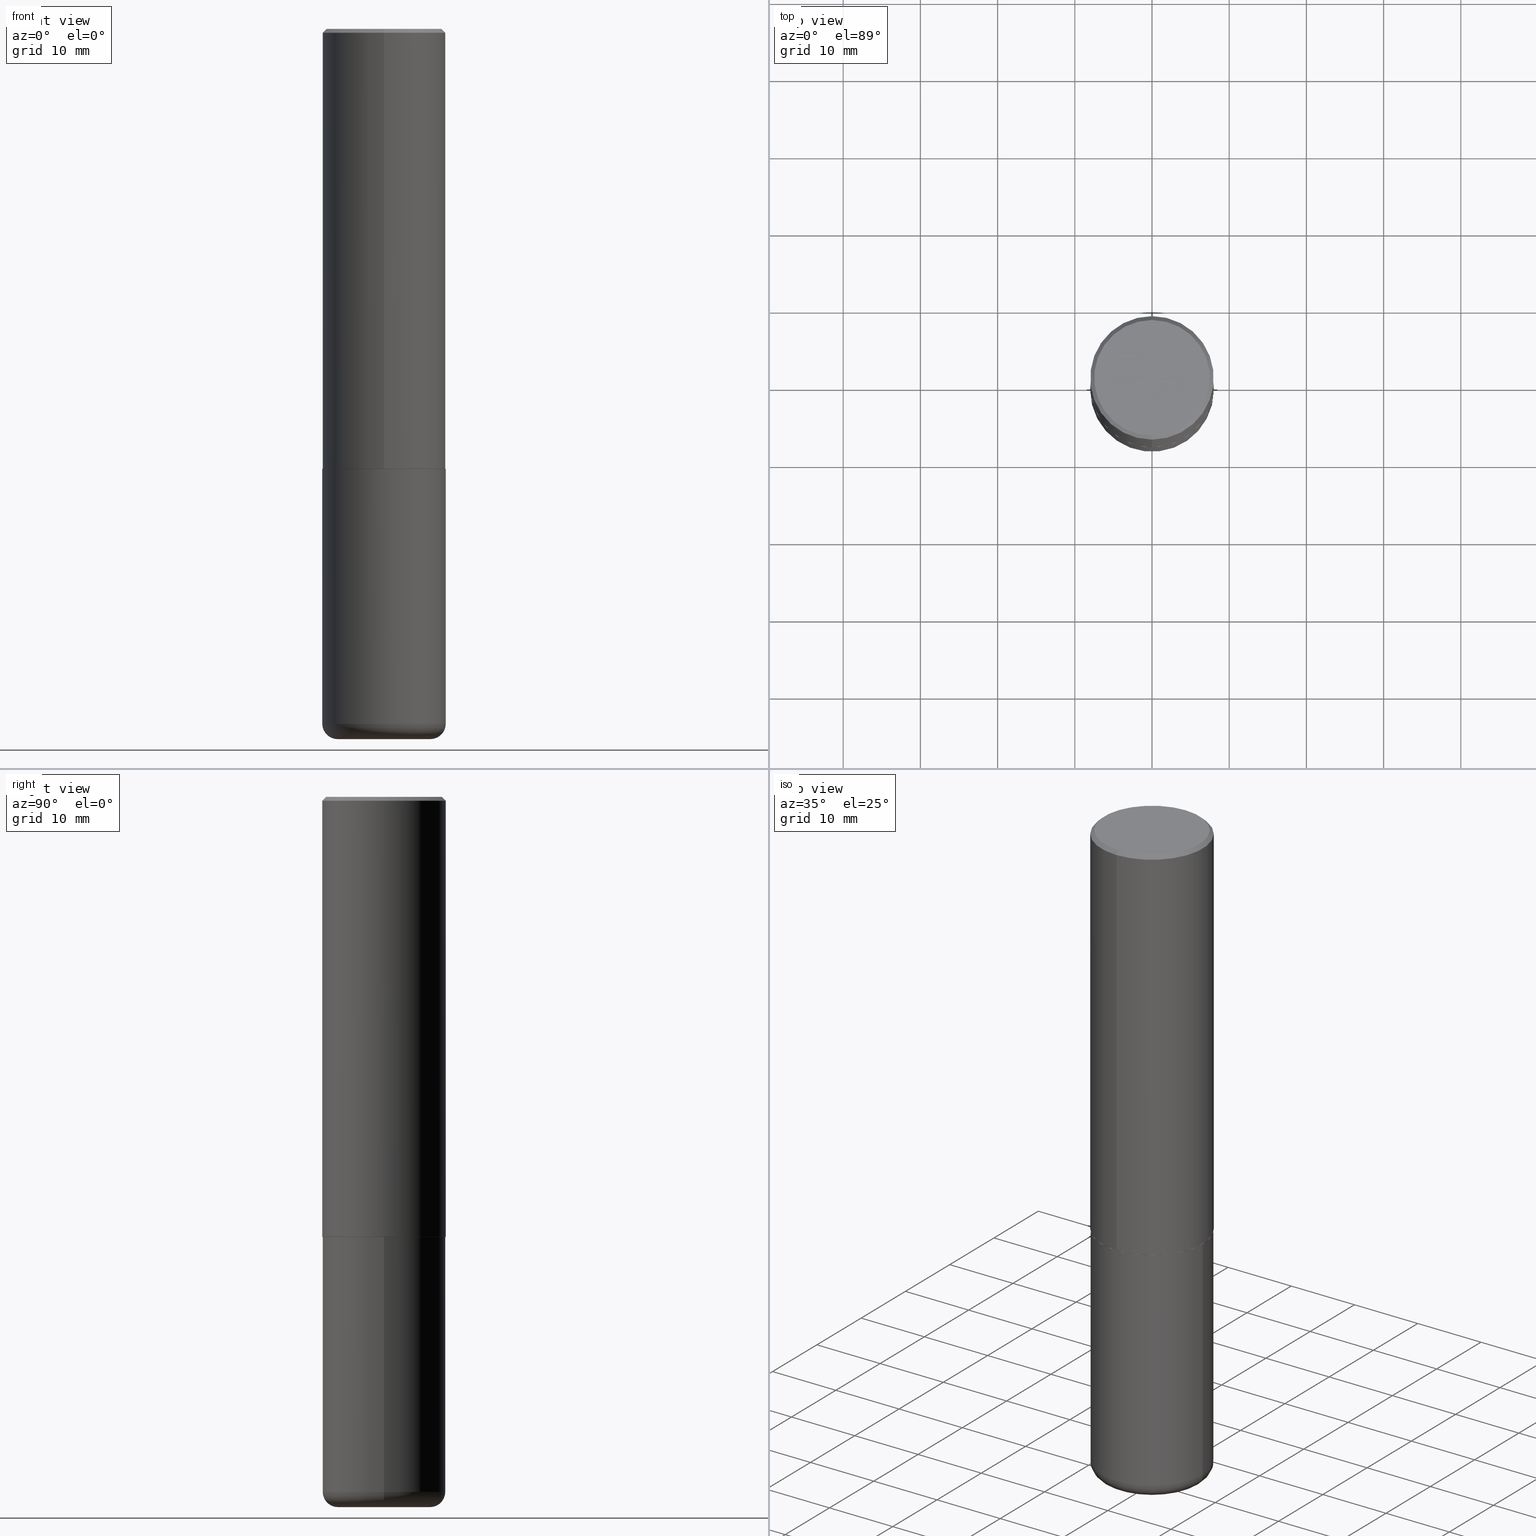
[diagram: canonical four-view strip — front | top / right | iso, engineering-drawing reading convention]
A machine part, canonical four-view strip (front | top / right | iso — engineering-drawing reading convention). The complete STEP part file that produces these views, byte-faithful:
ISO-10303-21;
HEADER;
FILE_DESCRIPTION (( 'STEP AP203' ),
    '1' );
FILE_NAME ('47132.STEP',
    '2024-03-05T22:03:56',
    ( '' ),
    ( '' ),
    'SwSTEP 2.0',
    'SolidWorks 2023',
    '' );
FILE_SCHEMA (( 'CONFIG_CONTROL_DESIGN' ));
ENDSEC;

DATA;
#1 = AXIS2_PLACEMENT_3D ( 'NONE', #29, #97, #381 ) ;
#2 = LINE ( 'NONE', #28, #35 ) ;
#3 = DATE_AND_TIME ( #254, #274 ) ;
#4 = DIRECTION ( 'NONE',  ( -2.445468806185136597E-29, 3.491481338843145583E-15, 1.000000000000000000 ) ) ;
#5 = APPROVAL_STATUS ( 'not_yet_approved' ) ;
#6 = FACE_OUTER_BOUND ( 'NONE', #56, .T. ) ;
#7 = CIRCLE ( 'NONE', #400, 0.3149500000000000077 ) ;
#8 = ORGANIZATION ( 'UNSPECIFIED', 'UNSPECIFIED', '' ) ;
#9 = DIRECTION ( 'NONE',  ( -2.445731576433639262E-29, 3.491105036891335583E-15, 1.000000000000000000 ) ) ;
#10 = CARTESIAN_POINT ( 'NONE',  ( 0.2362500000000000155, -1.429587034189325203E-14, -3.621999999999999886 ) ) ;
#11 = EDGE_LOOP ( 'NONE', ( #270, #60, #55, #53 ) ) ;
#12 = APPROVAL_ROLE ( '' ) ;
#13 = EDGE_LOOP ( 'NONE', ( #180, #20, #133, #298 ) ) ;
#14 = DIRECTION ( 'NONE',  ( -2.445731576433639542E-29, 3.491105036891335583E-15, 1.000000000000000000 ) ) ;
#15 = ORIENTED_EDGE ( 'NONE', *, *, #195, .F. ) ;
#16 = DIRECTION ( 'NONE',  ( 1.000000000000000000, -6.982962677686266711E-15, 4.876176775795936353E-29 ) ) ;
#17 = ORIENTED_EDGE ( 'NONE', *, *, #278, .T. ) ;
#18 = ORIENTED_EDGE ( 'NONE', *, *, #123, .T. ) ;
#19 = CC_DESIGN_PERSON_AND_ORGANIZATION_ASSIGNMENT ( #360, #364, ( #409 ) ) ;
#20 = ORIENTED_EDGE ( 'NONE', *, *, #259, .T. ) ;
#21 = CARTESIAN_POINT ( 'NONE',  ( -0.3149500000000000077, -7.865270629867031177E-15, -2.243999999999999773 ) ) ;
#22 = DIRECTION ( 'NONE',  ( -2.445731576433639542E-29, 3.491105036891335583E-15, 1.000000000000000000 ) ) ;
#23 = AXIS2_PLACEMENT_3D ( 'NONE', #229, #44, #71 ) ;
#24 = CARTESIAN_POINT ( 'NONE',  ( 5.488221657517087855E-29, -7.834039702784156618E-15, -2.244000000000000217 ) ) ;
#25 = APPROVAL_PERSON_ORGANIZATION ( #293, #92, #12 ) ;
#26 = DIRECTION ( 'NONE',  ( -6.982962677686266711E-15, -1.000000000000000000, 3.480615376543096919E-15 ) ) ;
#27 = EDGE_CURVE ( 'NONE', #266, #304, #399, .T. ) ;
#28 = CARTESIAN_POINT ( 'NONE',  ( -2.192301132659548636E-15, -0.3139500000000078339, -2.243999999999998884 ) ) ;
#29 = CARTESIAN_POINT ( 'NONE',  ( 8.857488016002564476E-29, -1.264614540928987199E-14, -3.621999999999999886 ) ) ;
#30 = VECTOR ( 'NONE', #199, 39.37007874015748143 ) ;
#31 = CIRCLE ( 'NONE', #417, 0.3149500000000000077 ) ;
#32 = EDGE_CURVE ( 'NONE', #210, #373, #358, .T. ) ;
#33 = ORIENTED_EDGE ( 'NONE', *, *, #27, .T. ) ;
#34 = CARTESIAN_POINT ( 'NONE',  ( 5.485775925940652970E-29, -7.830548597747266147E-15, -2.242999999999999883 ) ) ;
#35 = VECTOR ( 'NONE', #388, 39.37007874015748854 ) ;
#36 = DATE_AND_TIME ( #191, #285 ) ;
#37 = DIRECTION ( 'NONE',  ( 7.105427357601001859E-15, 1.000000000000000000, -3.491481338843145583E-15 ) ) ;
#38 = EDGE_CURVE ( 'NONE', #304, #206, #218, .T. ) ;
#39 = DIRECTION ( 'NONE',  ( -6.982962677686267499E-15, -1.000000000000000000, 3.491105036891335189E-15 ) ) ;
#40 = SECURITY_CLASSIFICATION_LEVEL ( 'unclassified' ) ;
#41 = DIRECTION ( 'NONE',  ( 1.000000000000000000, -6.982962677686266711E-15, 0.000000000000000000 ) ) ;
#42 = AXIS2_PLACEMENT_3D ( 'NONE', #244, #188, #316 ) ;
#43 = CARTESIAN_POINT ( 'NONE',  ( 2.234301632597690306E-15, 0.3139499999999921798, -2.244000000000001105 ) ) ;
#44 = DIRECTION ( 'NONE',  ( -2.445468806185136597E-29, 3.491481338843145583E-15, 1.000000000000000000 ) ) ;
#45 = ORIENTED_EDGE ( 'NONE', *, *, #27, .F. ) ;
#46 = ORIENTED_EDGE ( 'NONE', *, *, #278, .F. ) ;
#47 = DATE_AND_TIME ( #335, #176 ) ;
#48 = PERSON ( 'UNSPECIFIED', 'UNSPECIFIED', 'UNSPECIFIED', ('UNSPECIFIED'), ('UNSPECIFIED'), ('UNSPECIFIED') ) ;
#49 = ORIENTED_EDGE ( 'NONE', *, *, #286, .T. ) ;
#50 = CONICAL_SURFACE ( 'NONE', #353, 0.3139500000000000068, 0.7853981633974141952 ) ;
#51 = PRODUCT_DEFINITION_SHAPE ( 'NONE', 'NONE',  #398 ) ;
#52 =( GEOMETRIC_REPRESENTATION_CONTEXT ( 3 ) GLOBAL_UNCERTAINTY_ASSIGNED_CONTEXT ( ( #223 ) ) GLOBAL_UNIT_ASSIGNED_CONTEXT ( ( #213, #145, #342 ) ) REPRESENTATION_CONTEXT ( 'NONE', 'WORKASPACE' ) );
#53 = ORIENTED_EDGE ( 'NONE', *, *, #351, .F. ) ;
#54 = EDGE_CURVE ( 'NONE', #262, #206, #2, .T. ) ;
#55 = ORIENTED_EDGE ( 'NONE', *, *, #291, .T. ) ;
#56 = EDGE_LOOP ( 'NONE', ( #235, #17, #240, #238 ) ) ;
#57 = DIRECTION ( 'NONE',  ( -6.982962677686265922E-15, -1.000000000000000000, 3.496670018878888311E-15 ) ) ;
#58 = CC_DESIGN_PERSON_AND_ORGANIZATION_ASSIGNMENT ( #277, #280, ( #313 ) ) ;
#59 = VECTOR ( 'NONE', #164, 39.37007874015748143 ) ;
#60 = ORIENTED_EDGE ( 'NONE', *, *, #211, .T. ) ;
#61 = CARTESIAN_POINT ( 'NONE',  ( 0.000000000000000000, 0.000000000000000000, 0.000000000000000000 ) ) ;
#62 = DIMENSIONAL_EXPONENTS ( 1.000000000000000000, 0.000000000000000000, 0.000000000000000000, 0.000000000000000000, 0.000000000000000000, 0.000000000000000000, 0.000000000000000000 ) ;
#63 = FACE_OUTER_BOUND ( 'NONE', #136, .T. ) ;
#64 = AXIS2_PLACEMENT_3D ( 'NONE', #114, #283, #241 ) ;
#65 = DIRECTION ( 'NONE',  ( 6.982962677686265922E-15, 1.000000000000000000, -3.496670018878888311E-15 ) ) ;
#66 = ADVANCED_FACE ( 'NONE', ( #415 ), #380, .T. ) ;
#67 = DIRECTION ( 'NONE',  ( -6.982962677686264344E-15, -1.000000000000000000, 3.491105036891335189E-15 ) ) ;
#68 = CALENDAR_DATE ( 2024, 5, 3 ) ;
#69 = DIRECTION ( 'NONE',  ( -2.445468806185136597E-29, 3.491481338843145583E-15, 1.000000000000000000 ) ) ;
#70 = PERSON_AND_ORGANIZATION ( #48, #8 ) ;
#71 = DIRECTION ( 'NONE',  ( 1.000000000000000000, -6.982962677686266711E-15, 0.000000000000000000 ) ) ;
#72 = DIRECTION ( 'NONE',  ( 1.000000000000000000, -6.982962677686269866E-15, 0.000000000000000000 ) ) ;
#73 = AXIS2_PLACEMENT_3D ( 'NONE', #61, #225, #67 ) ;
#74 = ORIENTED_EDGE ( 'NONE', *, *, #295, .T. ) ;
#75 = CC_DESIGN_APPROVAL ( #320, ( #398 ) ) ;
#76 = PERSON_AND_ORGANIZATION ( #48, #8 ) ;
#77 = CARTESIAN_POINT ( 'NONE',  ( 8.857488016002564476E-29, -1.264614540928987199E-14, -3.621999999999999886 ) ) ;
#78 = DIRECTION ( 'NONE',  ( 5.024295867787889629E-15, 0.7071067811865257013, 0.7071067811865691111 ) ) ;
#79 = ORIENTED_EDGE ( 'NONE', *, *, #329, .T. ) ;
#80 = COORDINATED_UNIVERSAL_TIME_OFFSET ( 5, 0, .BEHIND. ) ;
#81 = ORIENTED_EDGE ( 'NONE', *, *, #375, .T. ) ;
#82 = CARTESIAN_POINT ( 'NONE',  ( 0.2362500000000000155, -1.402109076052629711E-14, -3.543299999999999894 ) ) ;
#83 = DIRECTION ( 'NONE',  ( 1.000000000000000000, -6.982962677686265133E-15, 4.883557194083112340E-29 ) ) ;
#84 = ORIENTED_EDGE ( 'NONE', *, *, #170, .F. ) ;
#85 = EDGE_CURVE ( 'NONE', #324, #340, #155, .T. ) ;
#86 = DIRECTION ( 'NONE',  ( -6.982962677686265922E-15, -1.000000000000000000, 3.496670018878888311E-15 ) ) ;
#87 = ORIENTED_EDGE ( 'NONE', *, *, #123, .F. ) ;
#88 = DIRECTION ( 'NONE',  ( -6.982962677686265922E-15, -1.000000000000000000, 3.469564049740290009E-15 ) ) ;
#89 = CIRCLE ( 'NONE', #390, 0.3149500000000002853 ) ;
#90 = FACE_OUTER_BOUND ( 'NONE', #334, .T. ) ;
#91 = PRODUCT_RELATED_PRODUCT_CATEGORY ( 'detail', '', ( #313 ) ) ;
#92 = APPROVAL ( #5, 'UNSPECIFIED' ) ;
#93 = CIRCLE ( 'NONE', #347, 0.2362500000000000155 ) ;
#94 = CARTESIAN_POINT ( 'NONE',  ( -2.160713844398143757E-15, -0.3149500000000001743, -0.01999999999999896652 ) ) ;
#95 = ADVANCED_FACE ( 'NONE', ( #90 ), #214, .T. ) ;
#96 = COORDINATED_UNIVERSAL_TIME_OFFSET ( 5, 0, .BEHIND. ) ;
#97 = DIRECTION ( 'NONE',  ( -2.445468806185136597E-29, 3.491481338843145583E-15, 1.000000000000000000 ) ) ;
#98 = CARTESIAN_POINT ( 'NONE',  ( -0.3149500000000000077, 2.237854346276435590E-15, -1.549218606675782676E-29 ) ) ;
#99 = SHAPE_DEFINITION_REPRESENTATION ( #51, #370 ) ;
#100 = CARTESIAN_POINT ( 'NONE',  ( -0.2362500000000000155, -1.055049983885156031E-14, -3.621999999999999886 ) ) ;
#101 = DIRECTION ( 'NONE',  ( -1.000000000000000000, 7.105427357600997914E-15, 0.000000000000000000 ) ) ;
#102 = ADVANCED_FACE ( 'NONE', ( #252 ), #50, .T. ) ;
#103 = APPROVAL_DATE_TIME ( #396, #92 ) ;
#104 = CARTESIAN_POINT ( 'NONE',  ( 2.059624841783564063E-15, 0.2949499999999999345, -9.678634946549864323E-16 ) ) ;
#105 = CIRCLE ( 'NONE', #406, 0.07869999999999993667 ) ;
#106 = CARTESIAN_POINT ( 'NONE',  ( 2.230748918918889014E-15, 0.3139499999999921798, -2.244000000000001105 ) ) ;
#107 = AXIS2_PLACEMENT_3D ( 'NONE', #378, #315, #405 ) ;
#108 = ORIENTED_EDGE ( 'NONE', *, *, #32, .F. ) ;
#109 = DIRECTION ( 'NONE',  ( 6.982962677686265922E-15, 1.000000000000000000, -3.491105036891335583E-15 ) ) ;
#110 = DIRECTION ( 'NONE',  ( -2.445468806185136597E-29, 3.491481338843145583E-15, 1.000000000000000000 ) ) ;
#111 = ORIENTED_EDGE ( 'NONE', *, *, #383, .T. ) ;
#112 = CONICAL_SURFACE ( 'NONE', #248, 0.3139500000000000068, 0.7853981633974141952 ) ;
#113 = DIRECTION ( 'NONE',  ( -6.982962677686266711E-15, -1.000000000000000000, 3.480615376543096919E-15 ) ) ;
#114 = CARTESIAN_POINT ( 'NONE',  ( 8.857488016002564476E-29, -1.264614540928987199E-14, -3.621999999999999886 ) ) ;
#115 = LENGTH_MEASURE_WITH_UNIT ( LENGTH_MEASURE( 0.02539999999999999897 ), #374 );
#116 = DIRECTION ( 'NONE',  ( -6.982962677686265922E-15, -1.000000000000000000, 3.469564049740290009E-15 ) ) ;
#117 = PERSON_AND_ORGANIZATION ( #48, #8 ) ;
#118 = DIRECTION ( 'NONE',  ( -2.445731576433639542E-29, 3.491105036891335583E-15, 1.000000000000000000 ) ) ;
#119 = TOROIDAL_SURFACE ( 'NONE', #385, 0.2362500000000000155, 0.07869999999999995055 ) ;
#120 = AXIS2_PLACEMENT_3D ( 'NONE', #104, #233, #109 ) ;
#121 = CARTESIAN_POINT ( 'NONE',  ( 4.891463152867296425E-31, -6.982210073782693945E-17, -0.02000000000000006981 ) ) ;
#122 = APPROVAL_PERSON_ORGANIZATION ( #161, #247, #193 ) ;
#123 = EDGE_CURVE ( 'NONE', #206, #210, #154, .T. ) ;
#124 = DIRECTION ( 'NONE',  ( -2.445731576433639542E-29, 3.491105036891335583E-15, 1.000000000000000000 ) ) ;
#125 = PERSON_AND_ORGANIZATION_ROLE ( 'design_supplier' ) ;
#126 = FACE_OUTER_BOUND ( 'NONE', #157, .T. ) ;
#127 = DATE_TIME_ROLE ( 'classification_date' ) ;
#128 = LINE ( 'NONE', #236, #363 ) ;
#129 = AXIS2_PLACEMENT_3D ( 'NONE', #134, #261, #39 ) ;
#130 = APPROVAL_PERSON_ORGANIZATION ( #117, #320, #267 ) ;
#131 = ADVANCED_FACE ( 'NONE', ( #282 ), #187, .T. ) ;
#132 = CARTESIAN_POINT ( 'NONE',  ( -0.2362500000000000155, -1.069270861468967988E-14, -3.543299999999999894 ) ) ;
#133 = ORIENTED_EDGE ( 'NONE', *, *, #231, .F. ) ;
#134 = CARTESIAN_POINT ( 'NONE',  ( -3.024779852765215528E-45, 4.317654595143425060E-31, 1.236758719522255372E-16 ) ) ;
#135 = ORIENTED_EDGE ( 'NONE', *, *, #231, .T. ) ;
#136 = EDGE_LOOP ( 'NONE', ( #306, #74, #212, #15 ) ) ;
#137 = CARTESIAN_POINT ( 'NONE',  ( -2.160713844398143757E-15, -0.3149500000000001743, -0.01999999999999896652 ) ) ;
#138 = ADVANCED_FACE ( 'NONE', ( #418 ), #112, .T. ) ;
#139 = CIRCLE ( 'NONE', #302, 0.3149500000000000632 ) ;
#140 = SECURITY_CLASSIFICATION ( '', '', #40 ) ;
#141 = ORIENTED_EDGE ( 'NONE', *, *, #85, .F. ) ;
#142 = APPLICATION_PROTOCOL_DEFINITION ( 'international standard', 'config_control_design', 1994, #249 ) ;
#143 = ORIENTED_EDGE ( 'NONE', *, *, #54, .F. ) ;
#144 = EDGE_LOOP ( 'NONE', ( #407, #336, #18, #300 ) ) ;
#145 =( NAMED_UNIT ( * ) PLANE_ANGLE_UNIT ( ) SI_UNIT ( $, .RADIAN. ) );
#146 = ORIENTED_EDGE ( 'NONE', *, *, #383, .F. ) ;
#147 = CARTESIAN_POINT ( 'NONE',  ( 5.488221657517087855E-29, -7.834039702784156618E-15, -2.244000000000000217 ) ) ;
#148 = CARTESIAN_POINT ( 'NONE',  ( 0.3149500000000000077, -1.457064992326020852E-14, -3.543299999999999894 ) ) ;
#149 = ADVANCED_FACE ( 'NONE', ( #379 ), #376, .T. ) ;
#150 = VERTEX_POINT ( 'NONE', #246 ) ;
#151 = LINE ( 'NONE', #350, #284 ) ;
#152 = DIRECTION ( 'NONE',  ( -2.445731576433639542E-29, 3.491105036891335583E-15, 1.000000000000000000 ) ) ;
#153 = DIRECTION ( 'NONE',  ( 6.982962677686265922E-15, 1.000000000000000000, -3.496670018878888311E-15 ) ) ;
#154 = LINE ( 'NONE', #185, #186 ) ;
#155 = CIRCLE ( 'NONE', #1, 0.2362500000000000155 ) ;
#156 = AXIS2_PLACEMENT_3D ( 'NONE', #147, #152, #208 ) ;
#157 = EDGE_LOOP ( 'NONE', ( #177, #79 ) ) ;
#158 = EDGE_CURVE ( 'NONE', #206, #304, #89, .T. ) ;
#159 = AXIS2_PLACEMENT_3D ( 'NONE', #305, #239, #16 ) ;
#160 = DIRECTION ( 'NONE',  ( 2.445731576433639542E-29, -3.491105036891335583E-15, -1.000000000000000000 ) ) ;
#161 = PERSON_AND_ORGANIZATION ( #48, #8 ) ;
#162 = ORIENTED_EDGE ( 'NONE', *, *, #211, .F. ) ;
#163 = CARTESIAN_POINT ( 'NONE',  ( 0.000000000000000000, 0.000000000000000000, 0.000000000000000000 ) ) ;
#164 = DIRECTION ( 'NONE',  ( -2.445468806185136877E-29, 3.491481338843145188E-15, 1.000000000000000000 ) ) ;
#165 = CC_DESIGN_DATE_AND_TIME_ASSIGNMENT ( #3, #297, ( #398 ) ) ;
#166 = CARTESIAN_POINT ( 'NONE',  ( 8.665029620955794069E-29, -1.237136582792291707E-14, -3.543299999999999894 ) ) ;
#167 = CIRCLE ( 'NONE', #311, 0.3149500000000000077 ) ;
#168 = PLANE ( 'NONE',  #288 ) ;
#169 = EDGE_LOOP ( 'NONE', ( #45, #111, #337, #202 ) ) ;
#170 = EDGE_CURVE ( 'NONE', #309, #242, #322, .T. ) ;
#171 = CARTESIAN_POINT ( 'NONE',  ( -2.192301132659548636E-15, -0.3139500000000078339, -2.243999999999998884 ) ) ;
#172 = VERTEX_POINT ( 'NONE', #148 ) ;
#173 = APPLICATION_PROTOCOL_DEFINITION ( 'international standard', 'config_control_design', 1994, #323 ) ;
#174 = AXIS2_PLACEMENT_3D ( 'NONE', #166, #299, #330 ) ;
#175 = ORIENTED_EDGE ( 'NONE', *, *, #295, .F. ) ;
#176 = LOCAL_TIME ( 17, 3, 56.00000000000000000, #80 ) ;
#177 = ORIENTED_EDGE ( 'NONE', *, *, #170, .T. ) ;
#178 = CARTESIAN_POINT ( 'NONE',  ( 2.199284095337290265E-15, 0.3149500000000000077, -0.02000000000000116962 ) ) ;
#179 = ORIENTED_EDGE ( 'NONE', *, *, #158, .F. ) ;
#180 = ORIENTED_EDGE ( 'NONE', *, *, #391, .T. ) ;
#181 = DIRECTION ( 'NONE',  ( 1.000000000000000000, -6.982962677686275388E-15, 0.000000000000000000 ) ) ;
#182 = EDGE_CURVE ( 'NONE', #373, #210, #139, .T. ) ;
#183 = ORIENTED_EDGE ( 'NONE', *, *, #318, .T. ) ;
#184 = FACE_OUTER_BOUND ( 'NONE', #339, .T. ) ;
#185 = CARTESIAN_POINT ( 'NONE',  ( -2.199284095337290265E-15, -0.3149500000000001743, 1.099523531368926621E-15 ) ) ;
#186 = VECTOR ( 'NONE', #314, 39.37007874015748143 ) ;
#187 = PLANE ( 'NONE',  #64 ) ;
#188 = DIRECTION ( 'NONE',  ( -2.445468806185136597E-29, 3.491481338843145583E-15, 1.000000000000000000 ) ) ;
#189 = AXIS2_PLACEMENT_3D ( 'NONE', #357, #290, #57 ) ;
#190 = CARTESIAN_POINT ( 'NONE',  ( -3.024779852765215528E-45, 4.317654595143425060E-31, 1.236758719522255372E-16 ) ) ;
#191 = CALENDAR_DATE ( 2024, 5, 3 ) ;
#192 = LINE ( 'NONE', #137, #222 ) ;
#193 = APPROVAL_ROLE ( '' ) ;
#194 = FACE_OUTER_BOUND ( 'NONE', #207, .T. ) ;
#195 = EDGE_CURVE ( 'NONE', #309, #373, #151, .T. ) ;
#196 = APPROVAL_DATE_TIME ( #392, #247 ) ;
#197 = FACE_OUTER_BOUND ( 'NONE', #13, .T. ) ;
#198 = CALENDAR_DATE ( 2024, 5, 3 ) ;
#199 = DIRECTION ( 'NONE',  ( -2.445468806185136877E-29, 3.491481338843145188E-15, 1.000000000000000000 ) ) ;
#200 = CIRCLE ( 'NONE', #23, 0.3149500000000000077 ) ;
#201 = AXIS2_PLACEMENT_3D ( 'NONE', #24, #408, #113 ) ;
#202 = ORIENTED_EDGE ( 'NONE', *, *, #38, .F. ) ;
#203 = ADVANCED_FACE ( 'NONE', ( #63 ), #273, .T. ) ;
#204 = PLANE ( 'NONE',  #371 ) ;
#205 = CC_DESIGN_DATE_AND_TIME_ASSIGNMENT ( #36, #127, ( #140 ) ) ;
#206 = VERTEX_POINT ( 'NONE', #317 ) ;
#207 = EDGE_LOOP ( 'NONE', ( #232, #146 ) ) ;
#208 = DIRECTION ( 'NONE',  ( -6.982962677686266711E-15, -1.000000000000000000, 3.480615376543096919E-15 ) ) ;
#209 = TOROIDAL_SURFACE ( 'NONE', #174, 0.2362500000000000155, 0.07869999999999995055 ) ;
#210 = VERTEX_POINT ( 'NONE', #94 ) ;
#211 = EDGE_CURVE ( 'NONE', #150, #172, #167, .T. ) ;
#212 = ORIENTED_EDGE ( 'NONE', *, *, #32, .T. ) ;
#213 =( CONVERSION_BASED_UNIT ( 'INCH', #115 ) LENGTH_UNIT ( ) NAMED_UNIT ( #62 ) );
#214 = CYLINDRICAL_SURFACE ( 'NONE', #73, 0.3149500000000001743 ) ;
#215 = EDGE_LOOP ( 'NONE', ( #141, #411 ) ) ;
#216 = DESIGN_CONTEXT ( 'detailed design', #249, 'design' ) ;
#217 = DIRECTION ( 'NONE',  ( -6.982962677686267499E-15, -1.000000000000000000, 3.491105036891335189E-15 ) ) ;
#218 = CIRCLE ( 'NONE', #416, 0.3149500000000002853 ) ;
#219 = CARTESIAN_POINT ( 'NONE',  ( 5.488221657517087855E-29, -7.834039702784156618E-15, -2.244000000000000217 ) ) ;
#220 = COORDINATED_UNIVERSAL_TIME_OFFSET ( 5, 0, .BEHIND. ) ;
#221 = CLOSED_SHELL ( 'NONE', ( #355, #250, #333, #149, #382, #131 ) ) ;
#222 = VECTOR ( 'NONE', #389, 39.37007874015748854 ) ;
#223 = UNCERTAINTY_MEASURE_WITH_UNIT (LENGTH_MEASURE( 1.000000000000000082E-05 ), #213, 'distance_accuracy_value', 'NONE');
#224 = DIRECTION ( 'NONE',  ( 2.445731576433639542E-29, -3.491105036891335583E-15, -1.000000000000000000 ) ) ;
#225 = DIRECTION ( 'NONE',  ( -2.445731576433639542E-29, 3.491105036891335583E-15, 1.000000000000000000 ) ) ;
#226 = AXIS2_PLACEMENT_3D ( 'NONE', #190, #22, #217 ) ;
#227 = DIRECTION ( 'NONE',  ( -6.982962677686264344E-15, -1.000000000000000000, 3.491105036891335189E-15 ) ) ;
#228 = CC_DESIGN_APPROVAL ( #92, ( #409 ) ) ;
#229 = CARTESIAN_POINT ( 'NONE',  ( 5.487632001079445967E-29, -7.834884124364017250E-15, -2.243999999999999773 ) ) ;
#230 = DIRECTION ( 'NONE',  ( -2.445731576433639542E-29, 3.491105036891335583E-15, 1.000000000000000000 ) ) ;
#231 = EDGE_CURVE ( 'NONE', #269, #367, #7, .T. ) ;
#232 = ORIENTED_EDGE ( 'NONE', *, *, #414, .F. ) ;
#233 = DIRECTION ( 'NONE',  ( 2.445731576433639262E-29, -3.491105036891335583E-15, -1.000000000000000000 ) ) ;
#234 = CIRCLE ( 'NONE', #348, 0.07869999999999993667 ) ;
#235 = ORIENTED_EDGE ( 'NONE', *, *, #85, .T. ) ;
#236 = CARTESIAN_POINT ( 'NONE',  ( 2.237854346276435985E-15, 0.3149500000000001743, -1.099523531368926621E-15 ) ) ;
#237 = PERSON_AND_ORGANIZATION ( #48, #8 ) ;
#238 = ORIENTED_EDGE ( 'NONE', *, *, #375, .F. ) ;
#239 = DIRECTION ( 'NONE',  ( -2.445468806185136597E-29, 3.491481338843145583E-15, 1.000000000000000000 ) ) ;
#240 = ORIENTED_EDGE ( 'NONE', *, *, #391, .F. ) ;
#241 = DIRECTION ( 'NONE',  ( -1.000000000000000000, 6.982962677686265922E-15, -4.876176775795935793E-29 ) ) ;
#242 = VERTEX_POINT ( 'NONE', #366 ) ;
#243 = ADVANCED_FACE ( 'NONE', ( #126 ), #292, .F. ) ;
#244 = CARTESIAN_POINT ( 'NONE',  ( 0.000000000000000000, 0.000000000000000000, 0.000000000000000000 ) ) ;
#245 = APPROVAL_STATUS ( 'not_yet_approved' ) ;
#246 = CARTESIAN_POINT ( 'NONE',  ( -0.3149500000000000077, -1.013351148164647951E-14, -3.543299999999999894 ) ) ;
#247 = APPROVAL ( #258, 'UNSPECIFIED' ) ;
#248 = AXIS2_PLACEMENT_3D ( 'NONE', #219, #118, #26 ) ;
#249 = APPLICATION_CONTEXT ( 'configuration controlled 3d designs of mechanical parts and assemblies' ) ;
#250 = ADVANCED_FACE ( 'NONE', ( #6 ), #209, .T. ) ;
#251 = LOCAL_TIME ( 17, 3, 56.00000000000000000, #96 ) ;
#252 = FACE_OUTER_BOUND ( 'NONE', #169, .T. ) ;
#253 = LINE ( 'NONE', #260, #59 ) ;
#254 = CALENDAR_DATE ( 2024, 5, 3 ) ;
#255 = CIRCLE ( 'NONE', #129, 0.2949499999999999345 ) ;
#256 = CARTESIAN_POINT ( 'NONE',  ( 5.487632001079445967E-29, -7.834884124364017250E-15, -2.243999999999999773 ) ) ;
#257 = CIRCLE ( 'NONE', #201, 0.3139500000000000068 ) ;
#258 = APPROVAL_STATUS ( 'not_yet_approved' ) ;
#259 = EDGE_CURVE ( 'NONE', #150, #367, #361, .T. ) ;
#260 = CARTESIAN_POINT ( 'NONE',  ( 0.3149500000000000077, -2.199284095337289871E-15, 1.535751875536930130E-29 ) ) ;
#261 = DIRECTION ( 'NONE',  ( -2.445731576433639542E-29, 3.491105036891335583E-15, 1.000000000000000000 ) ) ;
#262 = VERTEX_POINT ( 'NONE', #171 ) ;
#263 = CARTESIAN_POINT ( 'NONE',  ( 2.237854346276464384E-15, 0.3149499999999924027, -2.243000000000000771 ) ) ;
#264 = AXIS2_PLACEMENT_3D ( 'NONE', #410, #224, #65 ) ;
#265 = CC_DESIGN_SECURITY_CLASSIFICATION ( #140, ( #409 ) ) ;
#266 = VERTEX_POINT ( 'NONE', #43 ) ;
#267 = APPROVAL_ROLE ( '' ) ;
#268 = ADVANCED_FACE ( 'NONE', ( #194 ), #168, .F. ) ;
#269 = VERTEX_POINT ( 'NONE', #402 ) ;
#270 = ORIENTED_EDGE ( 'NONE', *, *, #259, .F. ) ;
#271 = CARTESIAN_POINT ( 'NONE',  ( 8.665029620955794069E-29, -1.237136582792291707E-14, -3.543299999999999894 ) ) ;
#272 = VECTOR ( 'NONE', #78, 39.37007874015748854 ) ;
#273 = CONICAL_SURFACE ( 'NONE', #384, 0.3149500000000000632, 0.7853981633974467247 ) ;
#274 = LOCAL_TIME ( 17, 3, 56.00000000000000000, #220 ) ;
#275 = DIRECTION ( 'NONE',  ( -2.445731576433639542E-29, 3.491105036891335583E-15, 1.000000000000000000 ) ) ;
#276 = ORIENTED_EDGE ( 'NONE', *, *, #182, .T. ) ;
#277 = PERSON_AND_ORGANIZATION ( #48, #8 ) ;
#278 = EDGE_CURVE ( 'NONE', #340, #150, #105, .T. ) ;
#279 = CARTESIAN_POINT ( 'NONE',  ( 4.891463152867296425E-31, -6.982210073782693945E-17, -0.02000000000000006981 ) ) ;
#280 = PERSON_AND_ORGANIZATION_ROLE ( 'design_owner' ) ;
#281 = CC_DESIGN_PERSON_AND_ORGANIZATION_ASSIGNMENT ( #76, #331, ( #140 ) ) ;
#282 = FACE_OUTER_BOUND ( 'NONE', #215, .T. ) ;
#283 = DIRECTION ( 'NONE',  ( 2.438088387897960049E-29, -3.491481338843145188E-15, -1.000000000000000000 ) ) ;
#284 = VECTOR ( 'NONE', #413, 39.37007874015748143 ) ;
#285 = LOCAL_TIME ( 17, 3, 56.00000000000000000, #394 ) ;
#286 = EDGE_CURVE ( 'NONE', #304, #373, #128, .T. ) ;
#287 = ORIENTED_EDGE ( 'NONE', *, *, #158, .T. ) ;
#288 = AXIS2_PLACEMENT_3D ( 'NONE', #369, #9, #395 ) ;
#289 = CIRCLE ( 'NONE', #156, 0.3139500000000000068 ) ;
#290 = DIRECTION ( 'NONE',  ( -2.445731576433639542E-29, 3.491105036891335583E-15, 1.000000000000000000 ) ) ;
#291 = EDGE_CURVE ( 'NONE', #172, #269, #253, .T. ) ;
#292 = PLANE ( 'NONE',  #120 ) ;
#293 = PERSON_AND_ORGANIZATION ( #48, #8 ) ;
#294 = CYLINDRICAL_SURFACE ( 'NONE', #319, 0.3149500000000001743 ) ;
#295 = EDGE_CURVE ( 'NONE', #242, #210, #192, .T. ) ;
#296 = FACE_OUTER_BOUND ( 'NONE', #144, .T. ) ;
#297 = DATE_TIME_ROLE ( 'creation_date' ) ;
#298 = ORIENTED_EDGE ( 'NONE', *, *, #291, .F. ) ;
#299 = DIRECTION ( 'NONE',  ( -2.445468806185136597E-29, 3.491481338843145583E-15, 1.000000000000000000 ) ) ;
#300 = ORIENTED_EDGE ( 'NONE', *, *, #182, .F. ) ;
#301 = APPROVAL_DATE_TIME ( #47, #320 ) ;
#302 = AXIS2_PLACEMENT_3D ( 'NONE', #121, #386, #86 ) ;
#303 = CC_DESIGN_PERSON_AND_ORGANIZATION_ASSIGNMENT ( #237, #403, ( #398 ) ) ;
#304 = VERTEX_POINT ( 'NONE', #263 ) ;
#305 = CARTESIAN_POINT ( 'NONE',  ( 0.000000000000000000, 0.000000000000000000, 0.000000000000000000 ) ) ;
#306 = ORIENTED_EDGE ( 'NONE', *, *, #329, .F. ) ;
#307 = DIRECTION ( 'NONE',  ( -6.982962677686266711E-15, -1.000000000000000000, 3.480615376543096919E-15 ) ) ;
#308 = ADVANCED_FACE ( 'NONE', ( #296 ), #294, .T. ) ;
#309 = VERTEX_POINT ( 'NONE', #327 ) ;
#310 = CARTESIAN_POINT ( 'NONE',  ( 8.665029620955794069E-29, -1.237136582792291707E-14, -3.543299999999999894 ) ) ;
#311 = AXIS2_PLACEMENT_3D ( 'NONE', #321, #69, #325 ) ;
#312 = LOCAL_TIME ( 17, 3, 56.00000000000000000, #326 ) ;
#313 = PRODUCT ( '47132', '47132', '', ( #372 ) ) ;
#314 = DIRECTION ( 'NONE',  ( -2.445731576433639542E-29, 3.491105036891335583E-15, 1.000000000000000000 ) ) ;
#315 = DIRECTION ( 'NONE',  ( 0.000000000000000000, 0.000000000000000000, 1.000000000000000000 ) ) ;
#316 = DIRECTION ( 'NONE',  ( 1.000000000000000000, -6.982962677686266711E-15, 4.876176775795936353E-29 ) ) ;
#317 = CARTESIAN_POINT ( 'NONE',  ( -2.199284095337236228E-15, -0.3149500000000081124, -2.242999999999998550 ) ) ;
#318 = EDGE_CURVE ( 'NONE', #340, #324, #93, .T. ) ;
#319 = AXIS2_PLACEMENT_3D ( 'NONE', #163, #230, #227 ) ;
#320 = APPROVAL ( #245, 'UNSPECIFIED' ) ;
#321 = CARTESIAN_POINT ( 'NONE',  ( 8.665029620955794069E-29, -1.237136582792291707E-14, -3.543299999999999894 ) ) ;
#322 = CIRCLE ( 'NONE', #226, 0.2949499999999999345 ) ;
#323 = APPLICATION_CONTEXT ( 'configuration controlled 3d designs of mechanical parts and assemblies' ) ;
#324 = VERTEX_POINT ( 'NONE', #10 ) ;
#325 = DIRECTION ( 'NONE',  ( 1.000000000000000000, -6.982962677686269866E-15, 0.000000000000000000 ) ) ;
#326 = COORDINATED_UNIVERSAL_TIME_OFFSET ( 5, 0, .BEHIND. ) ;
#327 = CARTESIAN_POINT ( 'NONE',  ( 2.129454468560426967E-15, 0.2949499999999999345, -9.060255586788737993E-16 ) ) ;
#328 = CYLINDRICAL_SURFACE ( 'NONE', #159, 0.3149500000000000077 ) ;
#329 = EDGE_CURVE ( 'NONE', #242, #309, #255, .T. ) ;
#330 = DIRECTION ( 'NONE',  ( 1.000000000000000000, -6.982962677686265133E-15, 4.883557194083112340E-29 ) ) ;
#331 = PERSON_AND_ORGANIZATION_ROLE ( 'classification_officer' ) ;
#332 = DIRECTION ( 'NONE',  ( 2.438088387897960049E-29, -3.491481338843145188E-15, -1.000000000000000000 ) ) ;
#333 = ADVANCED_FACE ( 'NONE', ( #397 ), #204, .F. ) ;
#334 = EDGE_LOOP ( 'NONE', ( #287, #49, #108, #87 ) ) ;
#335 = CALENDAR_DATE ( 2024, 5, 3 ) ;
#336 = ORIENTED_EDGE ( 'NONE', *, *, #38, .T. ) ;
#337 = ORIENTED_EDGE ( 'NONE', *, *, #54, .T. ) ;
#338 = DIRECTION ( 'NONE',  ( 1.000000000000000000, -6.982962677686269866E-15, 0.000000000000000000 ) ) ;
#339 = EDGE_LOOP ( 'NONE', ( #46, #183, #81, #162 ) ) ;
#340 = VERTEX_POINT ( 'NONE', #100 ) ;
#341 = ORIENTED_EDGE ( 'NONE', *, *, #351, .T. ) ;
#342 =( NAMED_UNIT ( * ) SI_UNIT ( $, .STERADIAN. ) SOLID_ANGLE_UNIT ( ) );
#343 = DIRECTION ( 'NONE',  ( -2.445731576433639542E-29, 3.491105036891335583E-15, 1.000000000000000000 ) ) ;
#344 = MANIFOLD_SOLID_BREP ( 'Body-Move/Copy2[2]', #352 ) ;
#345 = ORIENTED_EDGE ( 'NONE', *, *, #414, .T. ) ;
#346 = DIRECTION ( 'NONE',  ( -6.982962677686266711E-15, -1.000000000000000000, 3.491481338843145583E-15 ) ) ;
#347 = AXIS2_PLACEMENT_3D ( 'NONE', #77, #359, #72 ) ;
#348 = AXIS2_PLACEMENT_3D ( 'NONE', #82, #346, #181 ) ;
#349 = CARTESIAN_POINT ( 'NONE',  ( 5.488221657517087855E-29, -7.834039702784156618E-15, -2.244000000000000217 ) ) ;
#350 = CARTESIAN_POINT ( 'NONE',  ( 2.199284095337290265E-15, 0.3149500000000000077, -0.02000000000000116962 ) ) ;
#351 = EDGE_CURVE ( 'NONE', #367, #269, #200, .T. ) ;
#352 = CLOSED_SHELL ( 'NONE', ( #138, #95, #203, #66, #308, #102, #268, #243 ) ) ;
#353 = AXIS2_PLACEMENT_3D ( 'NONE', #349, #343, #307 ) ;
#354 = MANIFOLD_SOLID_BREP ( 'Body-Move/Copy2[1]', #221 ) ;
#355 = ADVANCED_FACE ( 'NONE', ( #197 ), #328, .T. ) ;
#356 = CARTESIAN_POINT ( 'NONE',  ( 5.485775925940652970E-29, -7.830548597747266147E-15, -2.242999999999999883 ) ) ;
#357 = CARTESIAN_POINT ( 'NONE',  ( 4.891463152867296425E-31, -6.982210073782693945E-17, -0.02000000000000006981 ) ) ;
#358 = CIRCLE ( 'NONE', #189, 0.3149500000000000632 ) ;
#359 = DIRECTION ( 'NONE',  ( -2.445468806185136597E-29, 3.491481338843145583E-15, 1.000000000000000000 ) ) ;
#360 = PERSON_AND_ORGANIZATION ( #48, #8 ) ;
#361 = LINE ( 'NONE', #98, #30 ) ;
#362 = CARTESIAN_POINT ( 'NONE',  ( 5.487632001079445967E-29, -7.834884124364017250E-15, -2.243999999999999773 ) ) ;
#363 = VECTOR ( 'NONE', #14, 39.37007874015748143 ) ;
#364 = PERSON_AND_ORGANIZATION_ROLE ( 'creator' ) ;
#365 = CC_DESIGN_APPROVAL ( #247, ( #140 ) ) ;
#366 = CARTESIAN_POINT ( 'NONE',  ( -2.092108864420428031E-15, -0.2949499999999999345, 1.153377302583324726E-15 ) ) ;
#367 = VERTEX_POINT ( 'NONE', #21 ) ;
#368 = EDGE_LOOP ( 'NONE', ( #345, #33, #179, #143 ) ) ;
#369 = CARTESIAN_POINT ( 'NONE',  ( 5.488221657517086734E-29, -7.834039702784155040E-15, -2.243999999999999773 ) ) ;
#370 = ADVANCED_BREP_SHAPE_REPRESENTATION ( '47132', ( #354, #344, #107 ), #52 ) ;
#371 = AXIS2_PLACEMENT_3D ( 'NONE', #256, #332, #393 ) ;
#372 = MECHANICAL_CONTEXT ( 'NONE', #323, 'mechanical' ) ;
#373 = VERTEX_POINT ( 'NONE', #178 ) ;
#374 =( LENGTH_UNIT ( ) NAMED_UNIT ( * ) SI_UNIT ( $, .METRE. ) );
#375 = EDGE_CURVE ( 'NONE', #324, #172, #234, .T. ) ;
#376 = CYLINDRICAL_SURFACE ( 'NONE', #42, 0.3149500000000000077 ) ;
#377 = EDGE_LOOP ( 'NONE', ( #175, #84, #404, #276 ) ) ;
#378 = CARTESIAN_POINT ( 'NONE',  ( 0.000000000000000000, 0.000000000000000000, 0.000000000000000000 ) ) ;
#379 = FACE_OUTER_BOUND ( 'NONE', #11, .T. ) ;
#380 = CONICAL_SURFACE ( 'NONE', #264, 0.3149500000000000632, 0.7853981633974467247 ) ;
#381 = DIRECTION ( 'NONE',  ( 1.000000000000000000, -6.982962677686269866E-15, 0.000000000000000000 ) ) ;
#382 = ADVANCED_FACE ( 'NONE', ( #184 ), #119, .T. ) ;
#383 = EDGE_CURVE ( 'NONE', #266, #262, #289, .T. ) ;
#384 = AXIS2_PLACEMENT_3D ( 'NONE', #279, #160, #153 ) ;
#385 = AXIS2_PLACEMENT_3D ( 'NONE', #310, #412, #83 ) ;
#386 = DIRECTION ( 'NONE',  ( -2.445731576433639542E-29, 3.491105036891335583E-15, 1.000000000000000000 ) ) ;
#387 = CC_DESIGN_PERSON_AND_ORGANIZATION_ASSIGNMENT ( #70, #125, ( #409 ) ) ;
#388 = DIRECTION ( 'NONE',  ( -4.937700262164378437E-15, -0.7071067811865208164, 0.7071067811865739960 ) ) ;
#389 = DIRECTION ( 'NONE',  ( -4.851104656540955597E-15, -0.7071067811865487940, -0.7071067811865461294 ) ) ;
#390 = AXIS2_PLACEMENT_3D ( 'NONE', #34, #275, #88 ) ;
#391 = EDGE_CURVE ( 'NONE', #172, #150, #31, .T. ) ;
#392 = DATE_AND_TIME ( #198, #312 ) ;
#393 = DIRECTION ( 'NONE',  ( -1.000000000000000000, 6.982962677686265922E-15, -4.876176775795935793E-29 ) ) ;
#394 = COORDINATED_UNIVERSAL_TIME_OFFSET ( 5, 0, .BEHIND. ) ;
#395 = DIRECTION ( 'NONE',  ( -6.982962677686265922E-15, -1.000000000000000000, 3.491105036891335583E-15 ) ) ;
#396 = DATE_AND_TIME ( #68, #251 ) ;
#397 = FACE_OUTER_BOUND ( 'NONE', #401, .T. ) ;
#398 = PRODUCT_DEFINITION ( 'UNKNOWN', '', #409, #216 ) ;
#399 = LINE ( 'NONE', #106, #272 ) ;
#400 = AXIS2_PLACEMENT_3D ( 'NONE', #362, #4, #41 ) ;
#401 = EDGE_LOOP ( 'NONE', ( #135, #341 ) ) ;
#402 = CARTESIAN_POINT ( 'NONE',  ( 0.3149500000000000077, -1.003416821970130712E-14, -2.243999999999999773 ) ) ;
#403 = PERSON_AND_ORGANIZATION_ROLE ( 'creator' ) ;
#404 = ORIENTED_EDGE ( 'NONE', *, *, #195, .T. ) ;
#405 = DIRECTION ( 'NONE',  ( 1.000000000000000000, 0.000000000000000000, 0.000000000000000000 ) ) ;
#406 = AXIS2_PLACEMENT_3D ( 'NONE', #132, #37, #101 ) ;
#407 = ORIENTED_EDGE ( 'NONE', *, *, #286, .F. ) ;
#408 = DIRECTION ( 'NONE',  ( -2.445731576433639542E-29, 3.491105036891335583E-15, 1.000000000000000000 ) ) ;
#409 = PRODUCT_DEFINITION_FORMATION_WITH_SPECIFIED_SOURCE ( 'ANY', '', #313, .NOT_KNOWN. ) ;
#410 = CARTESIAN_POINT ( 'NONE',  ( 4.891463152867296425E-31, -6.982210073782693945E-17, -0.02000000000000006981 ) ) ;
#411 = ORIENTED_EDGE ( 'NONE', *, *, #318, .F. ) ;
#412 = DIRECTION ( 'NONE',  ( -2.445468806185136597E-29, 3.491481338843145583E-15, 1.000000000000000000 ) ) ;
#413 = DIRECTION ( 'NONE',  ( 4.937700262164540154E-15, 0.7071067811865440200, -0.7071067811865511255 ) ) ;
#414 = EDGE_CURVE ( 'NONE', #262, #266, #257, .T. ) ;
#415 = FACE_OUTER_BOUND ( 'NONE', #377, .T. ) ;
#416 = AXIS2_PLACEMENT_3D ( 'NONE', #356, #124, #116 ) ;
#417 = AXIS2_PLACEMENT_3D ( 'NONE', #271, #110, #338 ) ;
#418 = FACE_OUTER_BOUND ( 'NONE', #368, .T. ) ;
ENDSEC;
END-ISO-10303-21;
